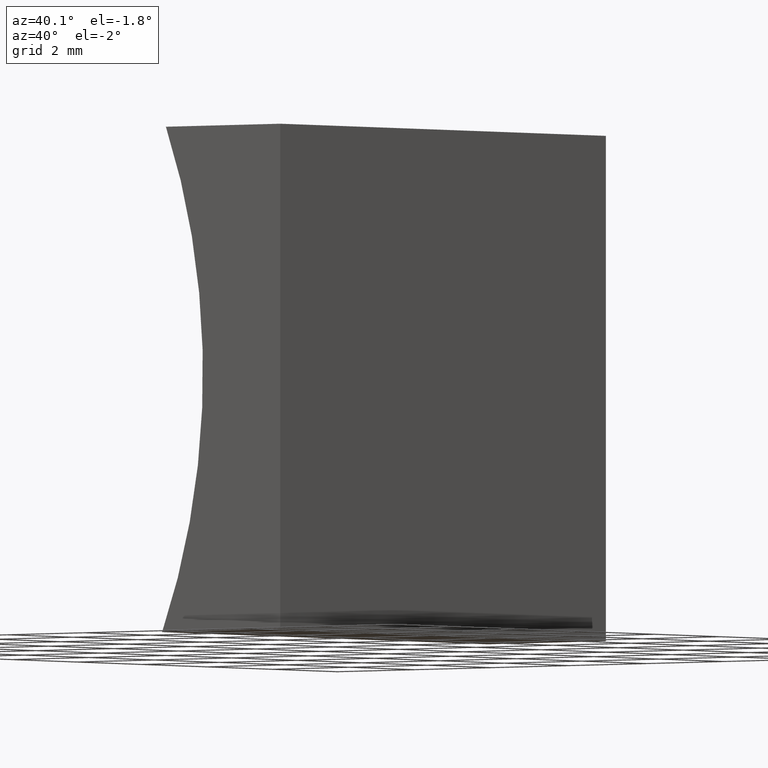
[diagram: clean part render]
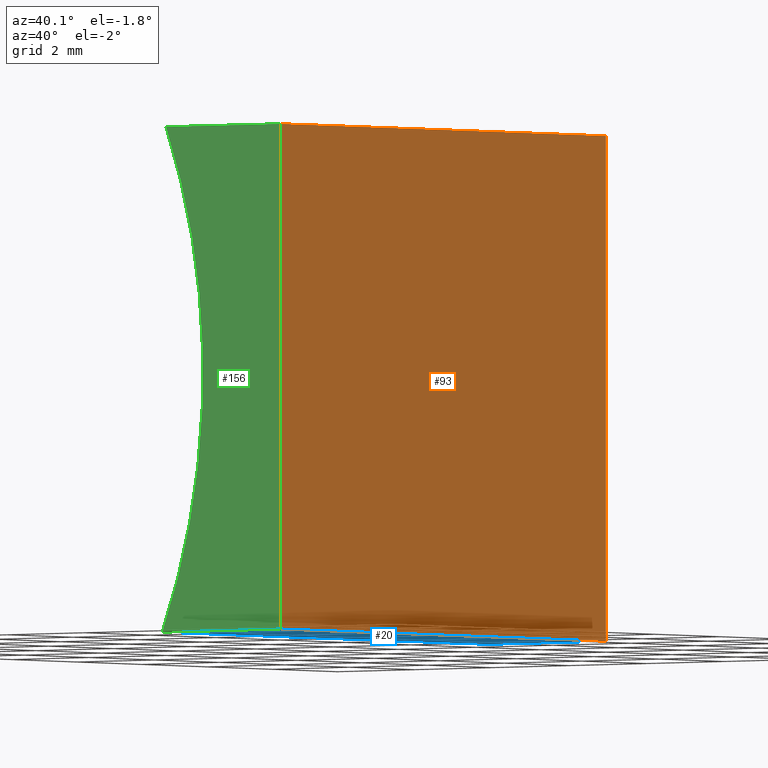
[diagram: same view with three faces highlighted in distinct colors, each labeled with its STEP entity id]
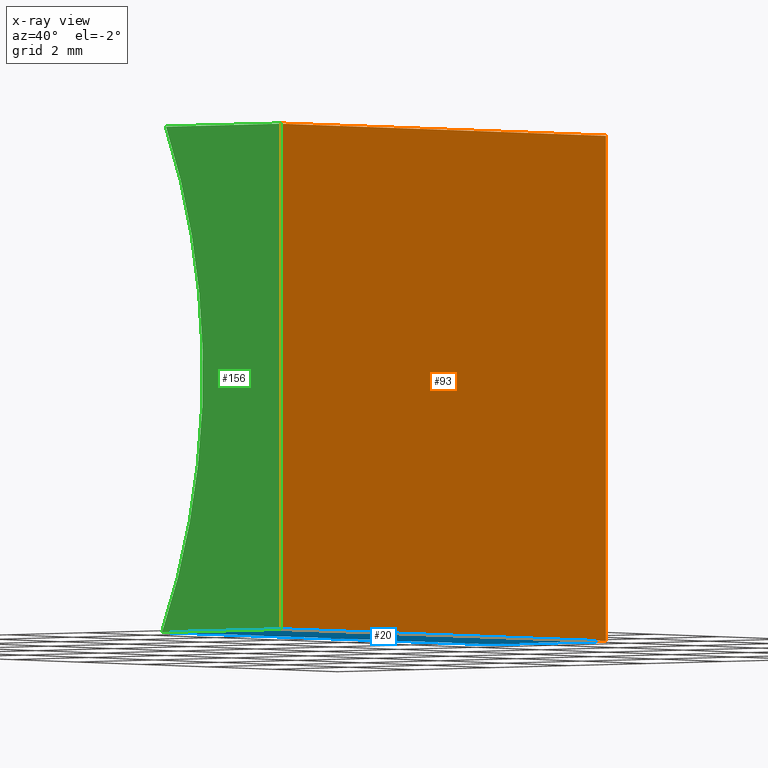
[diagram: x-ray of the same camera — body ghosted, the three highlighted faces saturated]
A machine part, auxiliary view with three faces highlighted in distinct colors.
The next image is the same camera in x-ray (body ghosted, the three faces saturated) — at least one of them is partly hidden behind the body in this view.
Their STEP definitions:

[orange] entity #93 — the highlighted planar face has unit normal (-1, 0, 0).
#6 = VECTOR ( 'NONE', #92, 1000.000000000000000 ) ;
#9 = DIRECTION ( 'NONE',  ( -6.123233995736766000E-017, -0.0000000000000000000, -1.000000000000000000 ) ) ;
#15 = VERTEX_POINT ( 'NONE', #108 ) ;
#23 = CARTESIAN_POINT ( 'NONE',  ( 0.0000000000000000000, 10.00000000000000000, 0.0000000000000000000 ) ) ;
#25 = CARTESIAN_POINT ( 'NONE',  ( 0.0000000000000000000, 10.00000000000000000, 0.0000000000000000000 ) ) ;
#27 = VECTOR ( 'NONE', #126, 1000.000000000000000 ) ;
#28 = EDGE_CURVE ( 'NONE', #166, #143, #172, .T. ) ;
#37 = ORIENTED_EDGE ( 'NONE', *, *, #134, .F. ) ;
#38 = VECTOR ( 'NONE', #61, 1000.000000000000000 ) ;
#45 = CARTESIAN_POINT ( 'NONE',  ( 0.0000000000000000000, 0.0000000000000000000, 0.0000000000000000000 ) ) ;
#46 = CARTESIAN_POINT ( 'NONE',  ( 6.123233995736766300E-016, 10.00000000000000000, 10.00000000000000000 ) ) ;
#47 = VECTOR ( 'NONE', #9, 1000.000000000000000 ) ;
#61 = DIRECTION ( 'NONE',  ( -0.0000000000000000000, -1.000000000000000000, -0.0000000000000000000 ) ) ;
#64 = ORIENTED_EDGE ( 'NONE', *, *, #28, .F. ) ;
#71 = CARTESIAN_POINT ( 'NONE',  ( 0.0000000000000000000, 10.00000000000000000, 0.0000000000000000000 ) ) ;
#79 = DIRECTION ( 'NONE',  ( -1.000000000000000000, 0.0000000000000000000, 6.123233995736766000E-017 ) ) ;
#91 = LINE ( 'NONE', #45, #27 ) ;
#92 = DIRECTION ( 'NONE',  ( -0.0000000000000000000, -1.000000000000000000, -0.0000000000000000000 ) ) ;
#93 = ADVANCED_FACE ( 'NONE', ( #139 ), #176, .F. ) ;
#94 = LINE ( 'NONE', #142, #38 ) ;
#97 = ORIENTED_EDGE ( 'NONE', *, *, #116, .T. ) ;
#108 = CARTESIAN_POINT ( 'NONE',  ( 0.0000000000000000000, 0.0000000000000000000, 0.0000000000000000000 ) ) ;
#111 = CARTESIAN_POINT ( 'NONE',  ( 6.123233995736766300E-016, 0.0000000000000000000, 10.00000000000000000 ) ) ;
#116 = EDGE_CURVE ( 'NONE', #129, #15, #91, .T. ) ;
#126 = DIRECTION ( 'NONE',  ( -6.123233995736766000E-017, -0.0000000000000000000, -1.000000000000000000 ) ) ;
#129 = VERTEX_POINT ( 'NONE', #111 ) ;
#134 = EDGE_CURVE ( 'NONE', #143, #15, #162, .T. ) ;
#139 = FACE_OUTER_BOUND ( 'NONE', #183, .T. ) ;
#142 = CARTESIAN_POINT ( 'NONE',  ( 6.123233995736766300E-016, 10.00000000000000000, 10.00000000000000000 ) ) ;
#143 = VERTEX_POINT ( 'NONE', #190 ) ;
#149 = EDGE_CURVE ( 'NONE', #166, #129, #94, .T. ) ;
#162 = LINE ( 'NONE', #25, #6 ) ;
#166 = VERTEX_POINT ( 'NONE', #46 ) ;
#172 = LINE ( 'NONE', #71, #47 ) ;
#176 = PLANE ( 'NONE',  #201 ) ;
#183 = EDGE_LOOP ( 'NONE', ( #97, #37, #64, #185 ) ) ;
#185 = ORIENTED_EDGE ( 'NONE', *, *, #149, .T. ) ;
#189 = DIRECTION ( 'NONE',  ( 6.123233995736766000E-017, 0.0000000000000000000, 1.000000000000000000 ) ) ;
#190 = CARTESIAN_POINT ( 'NONE',  ( 0.0000000000000000000, 10.00000000000000000, 0.0000000000000000000 ) ) ;
#201 = AXIS2_PLACEMENT_3D ( 'NONE', #23, #79, #189 ) ;

[blue] entity #20 — the highlighted planar face has unit normal (-0, 0, 1).
#6 = VECTOR ( 'NONE', #92, 1000.000000000000000 ) ;
#12 = DIRECTION ( 'NONE',  ( -0.0000000000000000000, -1.000000000000000000, -0.0000000000000000000 ) ) ;
#14 = EDGE_LOOP ( 'NONE', ( #68, #75, #107, #154 ) ) ;
#15 = VERTEX_POINT ( 'NONE', #108 ) ;
#20 = ADVANCED_FACE ( 'NONE', ( #113 ), #35, .F. ) ;
#25 = CARTESIAN_POINT ( 'NONE',  ( 0.0000000000000000000, 10.00000000000000000, 0.0000000000000000000 ) ) ;
#35 = PLANE ( 'NONE',  #158 ) ;
#39 = DIRECTION ( 'NONE',  ( -1.000000000000000000, 0.0000000000000000000, -4.475099880011462600E-027 ) ) ;
#48 = VECTOR ( 'NONE', #39, 1000.000000000000000 ) ;
#51 = DIRECTION ( 'NONE',  ( -4.475099880011462600E-027, 0.0000000000000000000, 1.000000000000000000 ) ) ;
#55 = EDGE_CURVE ( 'NONE', #95, #197, #69, .T. ) ;
#68 = ORIENTED_EDGE ( 'NONE', *, *, #152, .T. ) ;
#69 = LINE ( 'NONE', #193, #103 ) ;
#73 = LINE ( 'NONE', #188, #48 ) ;
#74 = EDGE_CURVE ( 'NONE', #143, #95, #80, .T. ) ;
#75 = ORIENTED_EDGE ( 'NONE', *, *, #55, .F. ) ;
#80 = LINE ( 'NONE', #173, #133 ) ;
#92 = DIRECTION ( 'NONE',  ( -0.0000000000000000000, -1.000000000000000000, -0.0000000000000000000 ) ) ;
#95 = VERTEX_POINT ( 'NONE', #140 ) ;
#103 = VECTOR ( 'NONE', #12, 1000.000000000000000 ) ;
#107 = ORIENTED_EDGE ( 'NONE', *, *, #74, .F. ) ;
#108 = CARTESIAN_POINT ( 'NONE',  ( 0.0000000000000000000, 0.0000000000000000000, 0.0000000000000000000 ) ) ;
#113 = FACE_OUTER_BOUND ( 'NONE', #14, .T. ) ;
#117 = CARTESIAN_POINT ( 'NONE',  ( -3.054779492032261100, 0.0000000000000000000, 0.0000000000000000000 ) ) ;
#133 = VECTOR ( 'NONE', #202, 1000.000000000000000 ) ;
#134 = EDGE_CURVE ( 'NONE', #143, #15, #162, .T. ) ;
#140 = CARTESIAN_POINT ( 'NONE',  ( -3.054779492032261100, 10.00000000000000000, 0.0000000000000000000 ) ) ;
#143 = VERTEX_POINT ( 'NONE', #190 ) ;
#152 = EDGE_CURVE ( 'NONE', #15, #197, #73, .T. ) ;
#154 = ORIENTED_EDGE ( 'NONE', *, *, #134, .T. ) ;
#158 = AXIS2_PLACEMENT_3D ( 'NONE', #170, #51, #194 ) ;
#162 = LINE ( 'NONE', #25, #6 ) ;
#170 = CARTESIAN_POINT ( 'NONE',  ( 0.0000000000000000000, 10.00000000000000000, 0.0000000000000000000 ) ) ;
#173 = CARTESIAN_POINT ( 'NONE',  ( 0.0000000000000000000, 10.00000000000000000, 0.0000000000000000000 ) ) ;
#188 = CARTESIAN_POINT ( 'NONE',  ( 0.0000000000000000000, 0.0000000000000000000, 0.0000000000000000000 ) ) ;
#190 = CARTESIAN_POINT ( 'NONE',  ( 0.0000000000000000000, 10.00000000000000000, 0.0000000000000000000 ) ) ;
#193 = CARTESIAN_POINT ( 'NONE',  ( -3.054779492032261100, 10.00000000000000000, 0.0000000000000000000 ) ) ;
#194 = DIRECTION ( 'NONE',  ( 1.000000000000000000, 0.0000000000000000000, 4.475099880011462600E-027 ) ) ;
#197 = VERTEX_POINT ( 'NONE', #117 ) ;
#202 = DIRECTION ( 'NONE',  ( -1.000000000000000000, 0.0000000000000000000, -4.475099880011462600E-027 ) ) ;

[green] entity #156 — the highlighted planar face has unit normal (0, 1, 0).
#2 = ORIENTED_EDGE ( 'NONE', *, *, #152, .F. ) ;
#4 = FACE_OUTER_BOUND ( 'NONE', #84, .T. ) ;
#5 = CARTESIAN_POINT ( 'NONE',  ( 6.123233995736766300E-016, 0.0000000000000000000, 10.00000000000000000 ) ) ;
#15 = VERTEX_POINT ( 'NONE', #108 ) ;
#17 = AXIS2_PLACEMENT_3D ( 'NONE', #102, #112, #26 ) ;
#26 = DIRECTION ( 'NONE',  ( 0.0000000000000000000, 0.0000000000000000000, 1.000000000000000000 ) ) ;
#27 = VECTOR ( 'NONE', #126, 1000.000000000000000 ) ;
#39 = DIRECTION ( 'NONE',  ( -1.000000000000000000, 0.0000000000000000000, -4.475099880011462600E-027 ) ) ;
#41 = AXIS2_PLACEMENT_3D ( 'NONE', #178, #50, #121 ) ;
#45 = CARTESIAN_POINT ( 'NONE',  ( 0.0000000000000000000, 0.0000000000000000000, 0.0000000000000000000 ) ) ;
#48 = VECTOR ( 'NONE', #39, 1000.000000000000000 ) ;
#50 = DIRECTION ( 'NONE',  ( 0.0000000000000000000, 1.000000000000000000, 0.0000000000000000000 ) ) ;
#56 = ORIENTED_EDGE ( 'NONE', *, *, #85, .F. ) ;
#62 = CARTESIAN_POINT ( 'NONE',  ( -2.957014408104902800, 0.0000000000000000000, 10.00000000000000000 ) ) ;
#73 = LINE ( 'NONE', #188, #48 ) ;
#76 = VECTOR ( 'NONE', #78, 1000.000000000000000 ) ;
#78 = DIRECTION ( 'NONE',  ( 1.000000000000000000, -0.0000000000000000000, -0.0000000000000000000 ) ) ;
#81 = ORIENTED_EDGE ( 'NONE', *, *, #116, .F. ) ;
#84 = EDGE_LOOP ( 'NONE', ( #2, #81, #56, #106 ) ) ;
#85 = EDGE_CURVE ( 'NONE', #155, #129, #196, .T. ) ;
#87 = CIRCLE ( 'NONE', #17, 12.92999999999999600 ) ;
#91 = LINE ( 'NONE', #45, #27 ) ;
#102 = CARTESIAN_POINT ( 'NONE',  ( -14.92935793985619200, 0.0000000000000000000, 5.116569816437113600 ) ) ;
#106 = ORIENTED_EDGE ( 'NONE', *, *, #137, .F. ) ;
#108 = CARTESIAN_POINT ( 'NONE',  ( 0.0000000000000000000, 0.0000000000000000000, 0.0000000000000000000 ) ) ;
#111 = CARTESIAN_POINT ( 'NONE',  ( 6.123233995736766300E-016, 0.0000000000000000000, 10.00000000000000000 ) ) ;
#112 = DIRECTION ( 'NONE',  ( -0.0000000000000000000, -1.000000000000000000, -0.0000000000000000000 ) ) ;
#116 = EDGE_CURVE ( 'NONE', #129, #15, #91, .T. ) ;
#117 = CARTESIAN_POINT ( 'NONE',  ( -3.054779492032261100, 0.0000000000000000000, 0.0000000000000000000 ) ) ;
#118 = PLANE ( 'NONE',  #41 ) ;
#121 = DIRECTION ( 'NONE',  ( 0.0000000000000000000, -0.0000000000000000000, 1.000000000000000000 ) ) ;
#126 = DIRECTION ( 'NONE',  ( -6.123233995736766000E-017, -0.0000000000000000000, -1.000000000000000000 ) ) ;
#129 = VERTEX_POINT ( 'NONE', #111 ) ;
#137 = EDGE_CURVE ( 'NONE', #197, #155, #87, .T. ) ;
#152 = EDGE_CURVE ( 'NONE', #15, #197, #73, .T. ) ;
#155 = VERTEX_POINT ( 'NONE', #62 ) ;
#156 = ADVANCED_FACE ( 'NONE', ( #4 ), #118, .F. ) ;
#178 = CARTESIAN_POINT ( 'NONE',  ( -14.92935793985619200, 0.0000000000000000000, 5.116569816437113600 ) ) ;
#188 = CARTESIAN_POINT ( 'NONE',  ( 0.0000000000000000000, 0.0000000000000000000, 0.0000000000000000000 ) ) ;
#196 = LINE ( 'NONE', #5, #76 ) ;
#197 = VERTEX_POINT ( 'NONE', #117 ) ;